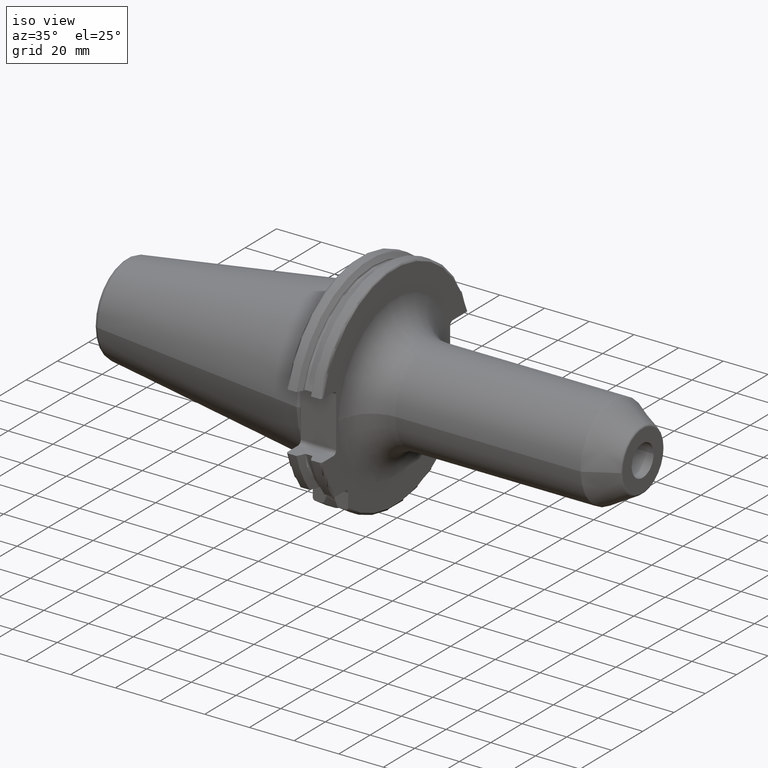
[diagram: clean part render]
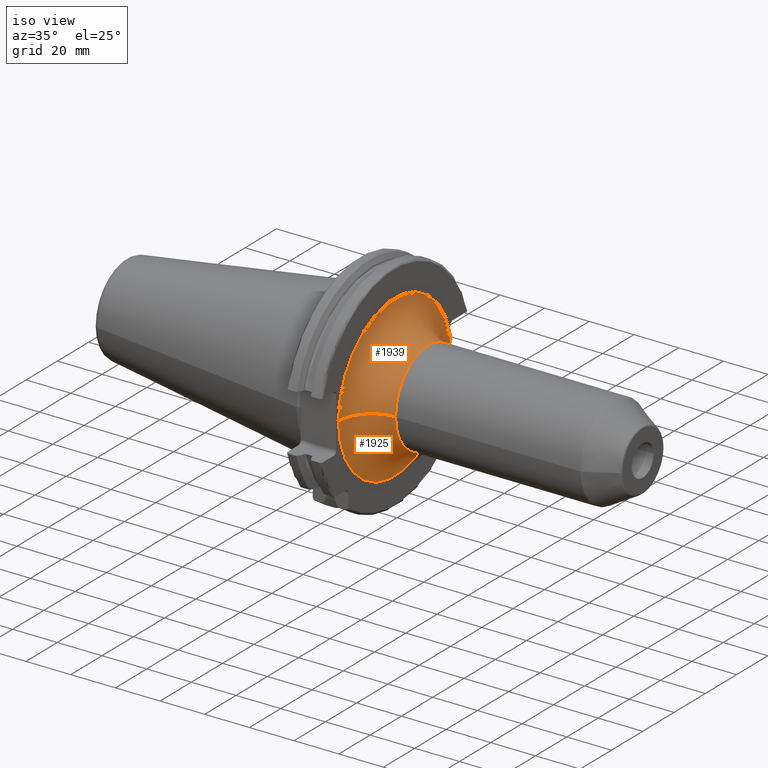
[diagram: same view with one multi-face feature highlighted, each face labeled with its STEP entity id]
A machine part, iso view. The highlighted faces form ONE feature: a constant-radius fillet chain: 2 tangent blend faces with common blend radius 15 mm. The faces share edges in the B-rep.
Their STEP definitions:
[1] entity #1925 (Torus):
#130=CARTESIAN_POINT('',(1.905E1,0.E0,0.E0));
#131=DIRECTION('',(1.E0,0.E0,0.E0));
#132=DIRECTION('',(0.E0,-1.E0,0.E0));
#133=AXIS2_PLACEMENT_3D('',#130,#131,#132);
#176=CARTESIAN_POINT('',(3.405E1,-3.6E1,3.046451979571E-12));
#177=DIRECTION('',(0.E0,-8.462328060510E-14,-1.E0));
#178=DIRECTION('',(-1.E0,0.E0,0.E0));
#179=AXIS2_PLACEMENT_3D('',#176,#177,#178);
#181=CARTESIAN_POINT('',(1.905E1,3.530000830228E1,-7.064492019331E0));
#182=CARTESIAN_POINT('',(1.905E1,3.530000830228E1,-6.282375082148E0));
#183=CARTESIAN_POINT('',(1.905461024940E1,3.529999612560E1,-4.716477909785E0));
#184=CARTESIAN_POINT('',(1.906373965208E1,3.530000110697E1,-2.360589493905E0));
#185=CARTESIAN_POINT('',(1.906634316051E1,3.53E1,-7.868788855383E-1));
#186=CARTESIAN_POINT('',(1.906634223510E1,3.53E1,8.876249618879E-4));
#188=CARTESIAN_POINT('',(1.906634223510E1,3.53E1,8.876249618879E-4));
#195=CARTESIAN_POINT('',(3.405E1,3.599999998862E1,9.052265897646E-4));
#196=DIRECTION('',(0.E0,-2.514518304902E-5,9.999999996839E-1));
#197=DIRECTION('',(-9.989105176599E-1,-4.666666590793E-2,-1.173441856913E-6));
#198=AXIS2_PLACEMENT_3D('',#195,#196,#197);
#393=CARTESIAN_POINT('',(3.405E1,0.E0,0.E0));
#394=DIRECTION('',(1.E0,0.E0,0.E0));
#395=DIRECTION('',(0.E0,-1.E0,0.E0));
#396=AXIS2_PLACEMENT_3D('',#393,#394,#395);
#1646=CARTESIAN_POINT('',(1.905E1,-3.6E1,0.E0));
#1647=CARTESIAN_POINT('',(1.905E1,3.530009667998E1,-7.064217889032E0));
#1648=VERTEX_POINT('',#1646);
#1649=VERTEX_POINT('',#1647);
#1650=CARTESIAN_POINT('',(3.405E1,-2.1E1,0.E0));
#1651=CARTESIAN_POINT('',(3.405E1,2.1E1,0.E0));
#1652=VERTEX_POINT('',#1650);
#1653=VERTEX_POINT('',#1651);
#1672=VERTEX_POINT('',#188);
#1910=CARTESIAN_POINT('',(3.405E1,0.E0,0.E0));
#1911=DIRECTION('',(1.E0,0.E0,0.E0));
#1912=DIRECTION('',(0.E0,-9.999731921857E-1,7.322220282676E-3));
#1913=AXIS2_PLACEMENT_3D('',#1910,#1911,#1912);
#1914=TOROIDAL_SURFACE('',#1913,3.6E1,1.5E1);
#1915=ORIENTED_EDGE('',*,*,#1871,.F.);
#1917=ORIENTED_EDGE('',*,*,#1916,.T.);
#1919=ORIENTED_EDGE('',*,*,#1918,.T.);
#1921=ORIENTED_EDGE('',*,*,#1920,.F.);
#1922=ORIENTED_EDGE('',*,*,#1846,.F.);
#1923=EDGE_LOOP('',(#1915,#1917,#1919,#1921,#1922));
#1924=FACE_OUTER_BOUND('',#1923,.F.);
#1925=ADVANCED_FACE('',(#1924),#1914,.F.);
#134=CIRCLE('',#133,3.6E1);
#180=CIRCLE('',#179,1.5E1);
#187=B_SPLINE_CURVE_WITH_KNOTS('',3,(#181,#182,#183,#184,#185,#186),
.UNSPECIFIED.,.F.,.F.,(4,1,1,4),(0.E0,3.333333333333E-1,6.666666666667E-1,1.E0),
.UNSPECIFIED.);
#199=CIRCLE('',#198,1.5E1);
#397=CIRCLE('',#396,2.1E1);
#1846=EDGE_CURVE('',#1649,#1672,#187,.T.);
#1871=EDGE_CURVE('',#1648,#1649,#134,.T.);
#1916=EDGE_CURVE('',#1648,#1652,#180,.T.);
#1918=EDGE_CURVE('',#1652,#1653,#397,.T.);
#1920=EDGE_CURVE('',#1672,#1653,#199,.T.);
[2] entity #1939 (Torus):
#171=CARTESIAN_POINT('',(1.905E1,0.E0,0.E0));
#172=DIRECTION('',(1.E0,0.E0,0.E0));
#173=DIRECTION('',(0.E0,9.805577363582E-1,1.962307969408E-1));
#174=AXIS2_PLACEMENT_3D('',#171,#172,#173);
#176=CARTESIAN_POINT('',(3.405E1,-3.6E1,3.046451979571E-12));
#177=DIRECTION('',(0.E0,-8.462328060510E-14,-1.E0));
#178=DIRECTION('',(-1.E0,0.E0,0.E0));
#179=AXIS2_PLACEMENT_3D('',#176,#177,#178);
#188=CARTESIAN_POINT('',(1.906634223510E1,3.53E1,8.876249618879E-4));
#189=CARTESIAN_POINT('',(1.906634130949E1,3.53E1,7.888278852790E-1));
#190=CARTESIAN_POINT('',(1.906373302420E1,3.530000121691E1,2.362642979671E0));
#191=CARTESIAN_POINT('',(1.905460410464E1,3.529999574081E1,4.717980985470E0));
#192=CARTESIAN_POINT('',(1.905E1,3.530000912684E1,6.282996023603E0));
#193=CARTESIAN_POINT('',(1.905E1,3.530000912684E1,7.064519378216E0));
#195=CARTESIAN_POINT('',(3.405E1,3.599999998862E1,9.052265897646E-4));
#196=DIRECTION('',(0.E0,-2.514518304902E-5,9.999999996839E-1));
#197=DIRECTION('',(-9.989105176599E-1,-4.666666590793E-2,-1.173441856913E-6));
#198=AXIS2_PLACEMENT_3D('',#195,#196,#197);
#229=CARTESIAN_POINT('',(3.405E1,0.E0,0.E0));
#230=DIRECTION('',(1.E0,0.E0,0.E0));
#231=DIRECTION('',(0.E0,1.E0,0.E0));
#232=AXIS2_PLACEMENT_3D('',#229,#230,#231);
#1646=CARTESIAN_POINT('',(1.905E1,-3.6E1,0.E0));
#1648=VERTEX_POINT('',#1646);
#1650=CARTESIAN_POINT('',(3.405E1,-2.1E1,0.E0));
#1651=CARTESIAN_POINT('',(3.405E1,2.1E1,0.E0));
#1652=VERTEX_POINT('',#1650);
#1653=VERTEX_POINT('',#1651);
#1654=CARTESIAN_POINT('',(1.905E1,3.530007850890E1,7.064308689871E0));
#1655=VERTEX_POINT('',#1654);
#1672=VERTEX_POINT('',#188);
#1926=CARTESIAN_POINT('',(3.405E1,0.E0,0.E0));
#1927=DIRECTION('',(1.E0,0.E0,0.E0));
#1928=DIRECTION('',(0.E0,1.485959642860E-3,-9.999988959614E-1));
#1929=AXIS2_PLACEMENT_3D('',#1926,#1927,#1928);
#1930=TOROIDAL_SURFACE('',#1929,3.6E1,1.5E1);
#1931=ORIENTED_EDGE('',*,*,#1905,.F.);
#1932=ORIENTED_EDGE('',*,*,#1848,.F.);
#1933=ORIENTED_EDGE('',*,*,#1920,.T.);
#1935=ORIENTED_EDGE('',*,*,#1934,.T.);
#1936=ORIENTED_EDGE('',*,*,#1916,.F.);
#1937=EDGE_LOOP('',(#1931,#1932,#1933,#1935,#1936));
#1938=FACE_OUTER_BOUND('',#1937,.F.);
#1939=ADVANCED_FACE('',(#1938),#1930,.F.);
#175=CIRCLE('',#174,3.6E1);
#180=CIRCLE('',#179,1.5E1);
#194=B_SPLINE_CURVE_WITH_KNOTS('',3,(#188,#189,#190,#191,#192,#193),
.UNSPECIFIED.,.F.,.F.,(4,1,1,4),(0.E0,3.333333333333E-1,6.666666666667E-1,1.E0),
.UNSPECIFIED.);
#199=CIRCLE('',#198,1.5E1);
#233=CIRCLE('',#232,2.1E1);
#1848=EDGE_CURVE('',#1672,#1655,#194,.T.);
#1905=EDGE_CURVE('',#1655,#1648,#175,.T.);
#1916=EDGE_CURVE('',#1648,#1652,#180,.T.);
#1920=EDGE_CURVE('',#1672,#1653,#199,.T.);
#1934=EDGE_CURVE('',#1653,#1652,#233,.T.);